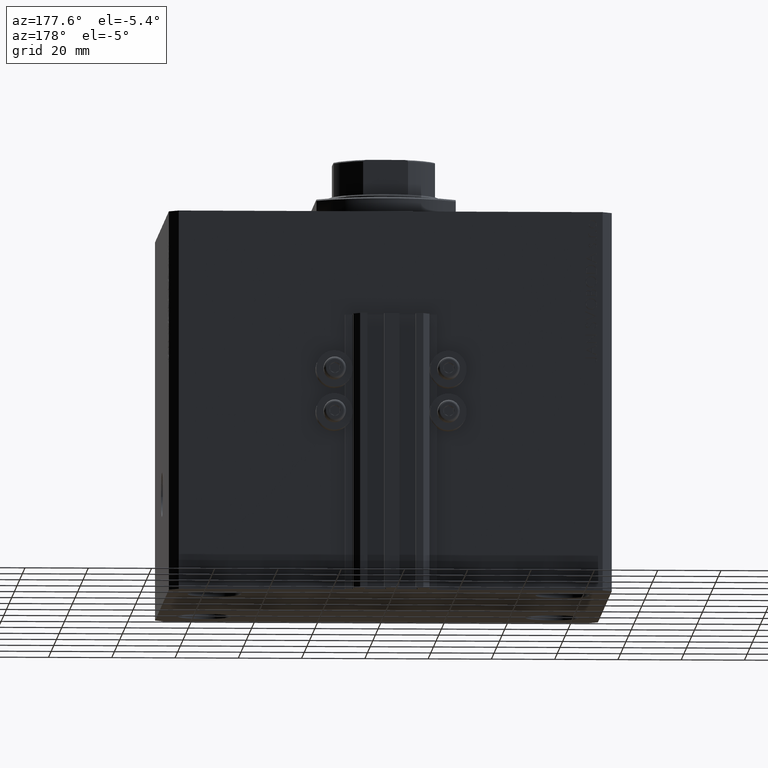
[diagram: clean part render]
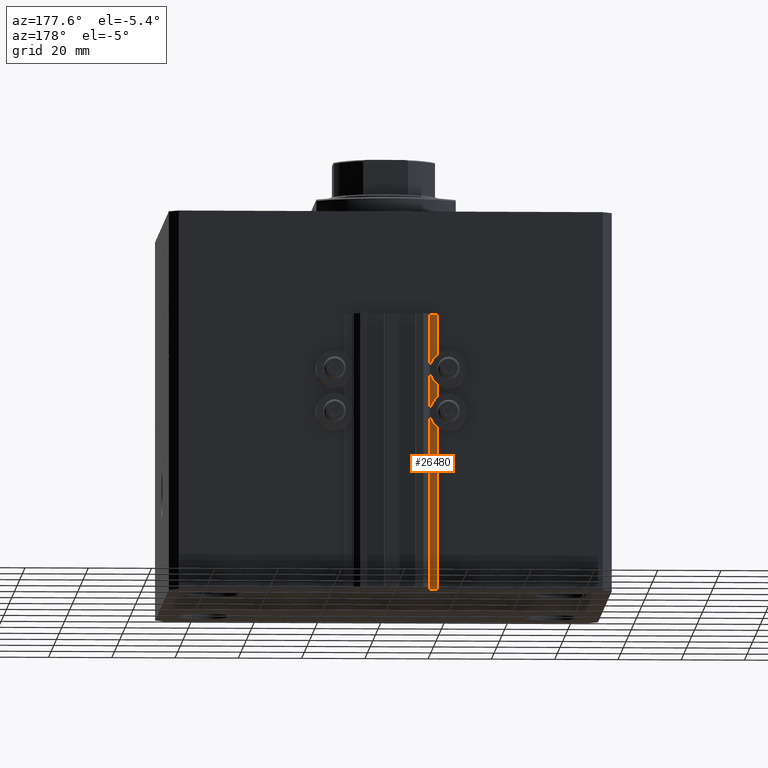
[diagram: same view with one face highlighted and labeled with its STEP entity id]
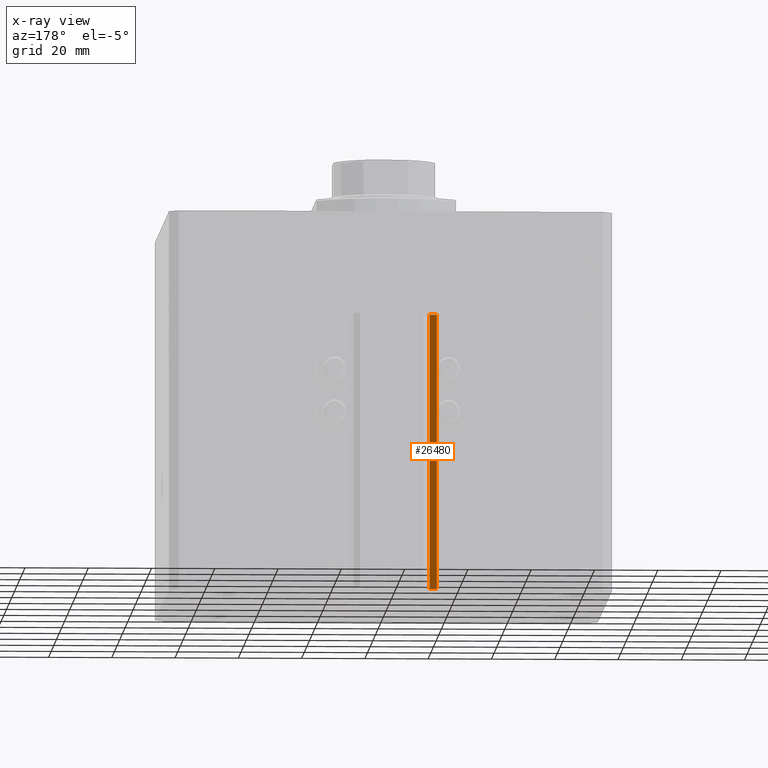
[diagram: x-ray of the same camera — body ghosted, the highlighted face saturated]
A machine part, auxiliary view. The second image highlights one B-rep face of the part: STEP entity #26480.
The next image is the same camera in x-ray: the body ghosted, the highlighted face saturated — about 0% of this face is hidden behind the body in this view.
In plain terms, the highlighted planar face has unit normal (0, 1, 0).
Its self-contained STEP definition (entity closure, byte-faithful):
#1564 = EDGE_LOOP ( 'NONE', ( #8599, #22954, #32139, #7489 ) ) ;
#2015 = CARTESIAN_POINT ( 'NONE',  ( -14.50000000000000000, 57.49999999999999289, -120.0000000000000000 ) ) ;
#4536 = VECTOR ( 'NONE', #13477, 1000.000000000000000 ) ;
#6183 = PLANE ( 'NONE',  #40478 ) ;
#7489 = ORIENTED_EDGE ( 'NONE', *, *, #37535, .T. ) ;
#8375 = LINE ( 'NONE', #26519, #29961 ) ;
#8599 = ORIENTED_EDGE ( 'NONE', *, *, #44625, .F. ) ;
#8781 = LINE ( 'NONE', #27411, #45479 ) ;
#11747 = EDGE_CURVE ( 'NONE', #34557, #35797, #8781, .T. ) ;
#13477 = DIRECTION ( 'NONE',  ( 0.000000000000000000, 0.000000000000000000, 1.000000000000000000 ) ) ;
#15460 = LINE ( 'NONE', #23098, #36751 ) ;
#15534 = CARTESIAN_POINT ( 'NONE',  ( -12.20000000000000107, 57.49999999999998579, -120.0000000000000000 ) ) ;
#15690 = DIRECTION ( 'NONE',  ( -1.000000000000000000, 3.016910393003142859E-15, 0.000000000000000000 ) ) ;
#17641 = DIRECTION ( 'NONE',  ( 3.016910393003142859E-15, 1.000000000000000000, -0.000000000000000000 ) ) ;
#18105 = CARTESIAN_POINT ( 'NONE',  ( -12.20000000000000107, 57.49999999999998579, -33.00000000000000000 ) ) ;
#19139 = DIRECTION ( 'NONE',  ( -1.000000000000000000, 3.016910393003142859E-15, 0.000000000000000000 ) ) ;
#20755 = CARTESIAN_POINT ( 'NONE',  ( -12.20000000000000107, 57.49999999999998579, -120.0000000000000000 ) ) ;
#22954 = ORIENTED_EDGE ( 'NONE', *, *, #11747, .F. ) ;
#23098 = CARTESIAN_POINT ( 'NONE',  ( -12.20000000000000107, 57.49999999999998579, -120.0000000000000000 ) ) ;
#24330 = FACE_OUTER_BOUND ( 'NONE', #1564, .T. ) ;
#26362 = VERTEX_POINT ( 'NONE', #43425 ) ;
#26480 = ADVANCED_FACE ( 'NONE', ( #24330 ), #6183, .T. ) ;
#26519 = CARTESIAN_POINT ( 'NONE',  ( -12.20000000000000107, 57.49999999999998579, -33.00000000000000000 ) ) ;
#27411 = CARTESIAN_POINT ( 'NONE',  ( -12.20000000000000107, 57.49999999999998579, -120.0000000000000000 ) ) ;
#29961 = VECTOR ( 'NONE', #19139, 1000.000000000000000 ) ;
#30989 = DIRECTION ( 'NONE',  ( 0.000000000000000000, 0.000000000000000000, 1.000000000000000000 ) ) ;
#32045 = VERTEX_POINT ( 'NONE', #40986 ) ;
#32139 = ORIENTED_EDGE ( 'NONE', *, *, #41535, .T. ) ;
#34557 = VERTEX_POINT ( 'NONE', #15534 ) ;
#35202 = LINE ( 'NONE', #2015, #4536 ) ;
#35540 = DIRECTION ( 'NONE',  ( -1.000000000000000000, 3.016910393003142859E-15, 0.000000000000000000 ) ) ;
#35797 = VERTEX_POINT ( 'NONE', #18105 ) ;
#36751 = VECTOR ( 'NONE', #15690, 1000.000000000000000 ) ;
#37535 = EDGE_CURVE ( 'NONE', #26362, #32045, #35202, .T. ) ;
#40478 = AXIS2_PLACEMENT_3D ( 'NONE', #20755, #17641, #35540 ) ;
#40986 = CARTESIAN_POINT ( 'NONE',  ( -14.50000000000000000, 57.49999999999999289, -33.00000000000000000 ) ) ;
#41535 = EDGE_CURVE ( 'NONE', #34557, #26362, #15460, .T. ) ;
#43425 = CARTESIAN_POINT ( 'NONE',  ( -14.50000000000000000, 57.49999999999999289, -120.0000000000000000 ) ) ;
#44625 = EDGE_CURVE ( 'NONE', #35797, #32045, #8375, .T. ) ;
#45479 = VECTOR ( 'NONE', #30989, 1000.000000000000000 ) ;